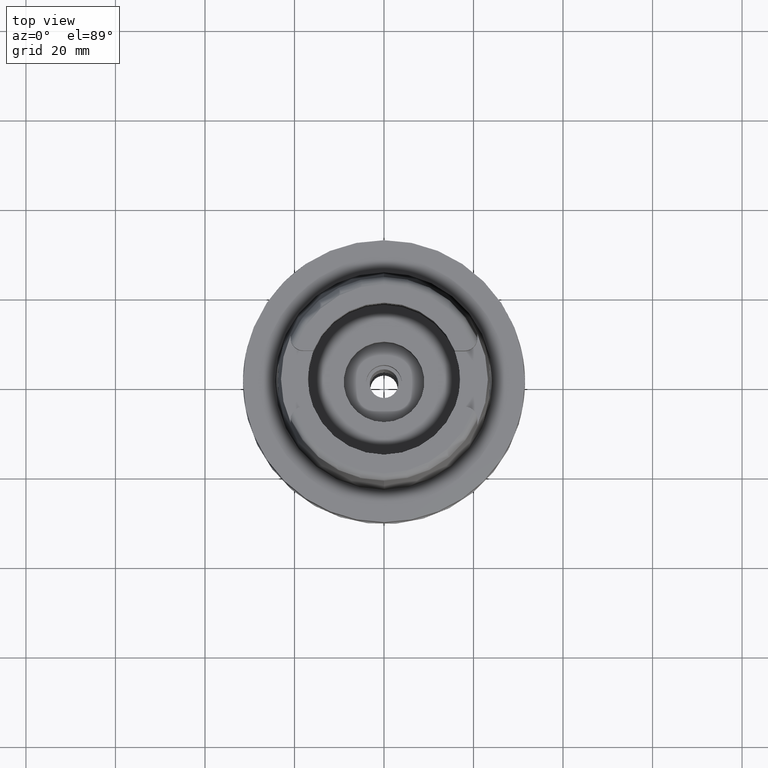
[diagram: clean part render]
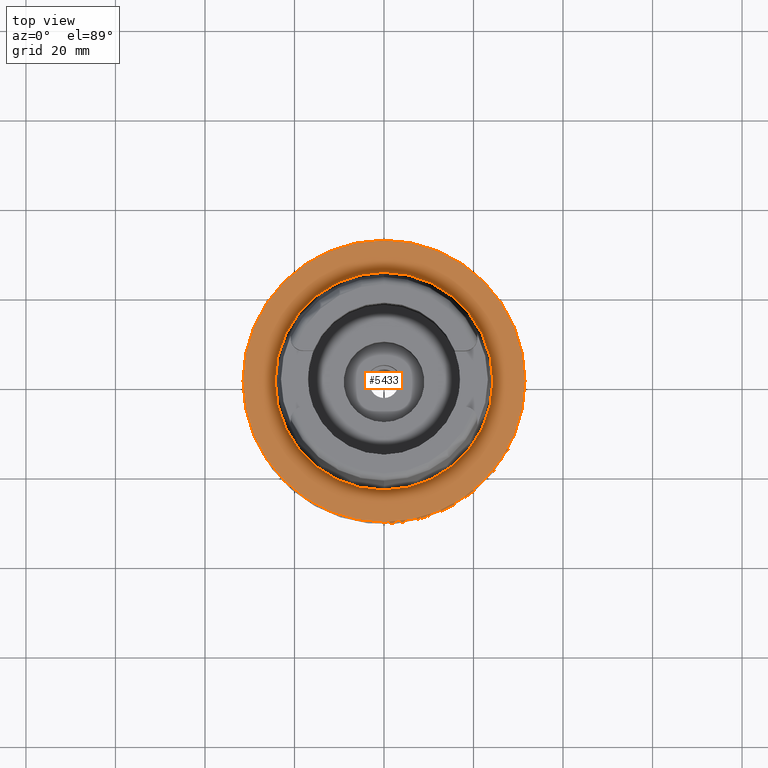
[diagram: same view with one face highlighted and labeled with its STEP entity id]
A machine part, top view. The second image highlights one B-rep face of the part: STEP entity #5433.
In plain terms, the highlighted planar face has unit normal (0, 0, 1).
Its self-contained STEP definition (entity closure, byte-faithful):
#10 = AXIS2_PLACEMENT_3D ( 'NONE', #493, #3346, #2070 ) ;
#149 = EDGE_LOOP ( 'NONE', ( #479, #3675 ) ) ;
#435 = DIRECTION ( 'NONE',  ( 0.0000000000000000000, 0.0000000000000000000, 1.000000000000000000 ) ) ;
#477 = CARTESIAN_POINT ( 'NONE',  ( 0.0000000000000000000, 0.0000000000000000000, -1.534772309241999973E-12 ) ) ;
#479 = ORIENTED_EDGE ( 'NONE', *, *, #1303, .F. ) ;
#493 = CARTESIAN_POINT ( 'NONE',  ( 0.0000000000000000000, 0.0000000000000000000, -3.268496584495999908E-13 ) ) ;
#864 = CIRCLE ( 'NONE', #1928, 24.31503482328999866 ) ;
#1036 = FACE_OUTER_BOUND ( 'NONE', #4088, .T. ) ;
#1216 = VERTEX_POINT ( 'NONE', #2303 ) ;
#1303 = EDGE_CURVE ( 'NONE', #2970, #1461, #864, .T. ) ;
#1461 = VERTEX_POINT ( 'NONE', #2406 ) ;
#1555 = CIRCLE ( 'NONE', #4648, 31.50000000000000000 ) ;
#1745 = CARTESIAN_POINT ( 'NONE',  ( 0.0000000000000000000, 0.0000000000000000000, -1.534772309241999973E-12 ) ) ;
#1848 = CIRCLE ( 'NONE', #10, 31.50000000000000000 ) ;
#1928 = AXIS2_PLACEMENT_3D ( 'NONE', #477, #435, #2148 ) ;
#2070 = DIRECTION ( 'NONE',  ( 0.0000000000000000000, -1.000000000000000000, 0.0000000000000000000 ) ) ;
#2148 = DIRECTION ( 'NONE',  ( 0.0000000000000000000, 1.000000000000000000, 0.0000000000000000000 ) ) ;
#2266 = CIRCLE ( 'NONE', #4398, 24.31503482328999866 ) ;
#2303 = CARTESIAN_POINT ( 'NONE',  ( 0.0000000000000000000, 31.50000000000000000, -1.705302565823999875E-13 ) ) ;
#2307 = DIRECTION ( 'NONE',  ( 0.0000000000000000000, 0.0000000000000000000, -1.000000000000000000 ) ) ;
#2327 = DIRECTION ( 'NONE',  ( 0.0000000000000000000, 0.0000000000000000000, 1.000000000000000000 ) ) ;
#2406 = CARTESIAN_POINT ( 'NONE',  ( 0.0000000000000000000, -24.31503482328999866, -8.348877145181000479E-13 ) ) ;
#2465 = EDGE_CURVE ( 'NONE', #5220, #1216, #1848, .T. ) ;
#2576 = CARTESIAN_POINT ( 'NONE',  ( 0.0000000000000000000, -31.50000000000000000, -3.268496584495999908E-13 ) ) ;
#2628 = DIRECTION ( 'NONE',  ( 0.0000000000000000000, -1.000000000000000000, 0.0000000000000000000 ) ) ;
#2775 = AXIS2_PLACEMENT_3D ( 'NONE', #4435, #2327, #3519 ) ;
#2801 = DIRECTION ( 'NONE',  ( 0.0000000000000000000, 1.000000000000000000, 0.0000000000000000000 ) ) ;
#2970 = VERTEX_POINT ( 'NONE', #3743 ) ;
#3346 = DIRECTION ( 'NONE',  ( 0.0000000000000000000, 0.0000000000000000000, -1.000000000000000000 ) ) ;
#3519 = DIRECTION ( 'NONE',  ( 1.000000000000000000, 0.0000000000000000000, 0.0000000000000000000 ) ) ;
#3659 = CARTESIAN_POINT ( 'NONE',  ( 0.0000000000000000000, 0.0000000000000000000, -3.268496584495999908E-13 ) ) ;
#3675 = ORIENTED_EDGE ( 'NONE', *, *, #5350, .F. ) ;
#3743 = CARTESIAN_POINT ( 'NONE',  ( 0.0000000000000000000, 24.31503482328999866, -1.534772309241999973E-12 ) ) ;
#3960 = FACE_BOUND ( 'NONE', #149, .T. ) ;
#3965 = ORIENTED_EDGE ( 'NONE', *, *, #2465, .F. ) ;
#4088 = EDGE_LOOP ( 'NONE', ( #4914, #3965 ) ) ;
#4398 = AXIS2_PLACEMENT_3D ( 'NONE', #1745, #5140, #2628 ) ;
#4430 = EDGE_CURVE ( 'NONE', #1216, #5220, #1555, .T. ) ;
#4435 = CARTESIAN_POINT ( 'NONE',  ( 0.0000000000000000000, 0.0000000000000000000, 0.0000000000000000000 ) ) ;
#4648 = AXIS2_PLACEMENT_3D ( 'NONE', #3659, #2307, #2801 ) ;
#4819 = PLANE ( 'NONE',  #2775 ) ;
#4914 = ORIENTED_EDGE ( 'NONE', *, *, #4430, .F. ) ;
#5140 = DIRECTION ( 'NONE',  ( 0.0000000000000000000, 0.0000000000000000000, 1.000000000000000000 ) ) ;
#5220 = VERTEX_POINT ( 'NONE', #2576 ) ;
#5350 = EDGE_CURVE ( 'NONE', #1461, #2970, #2266, .T. ) ;
#5433 = ADVANCED_FACE ( 'NONE', ( #1036, #3960 ), #4819, .T. ) ;